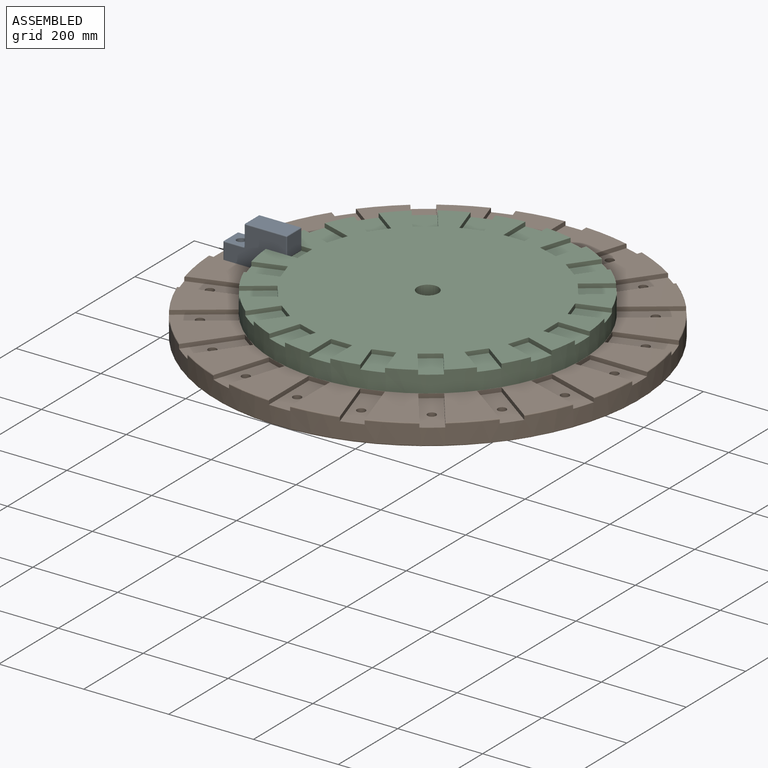
[diagram: assembled view]
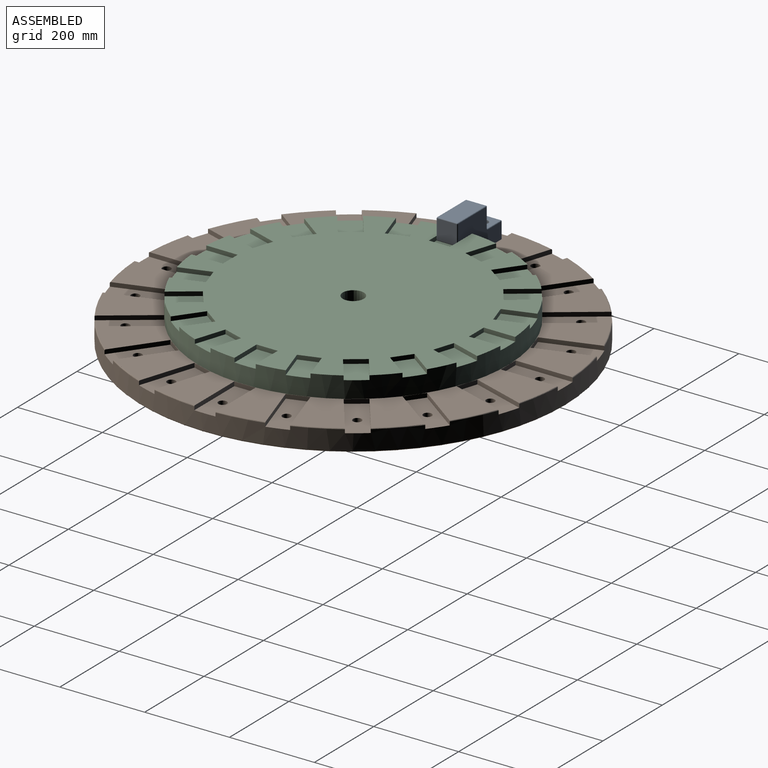
[diagram: assembled view, second angle]
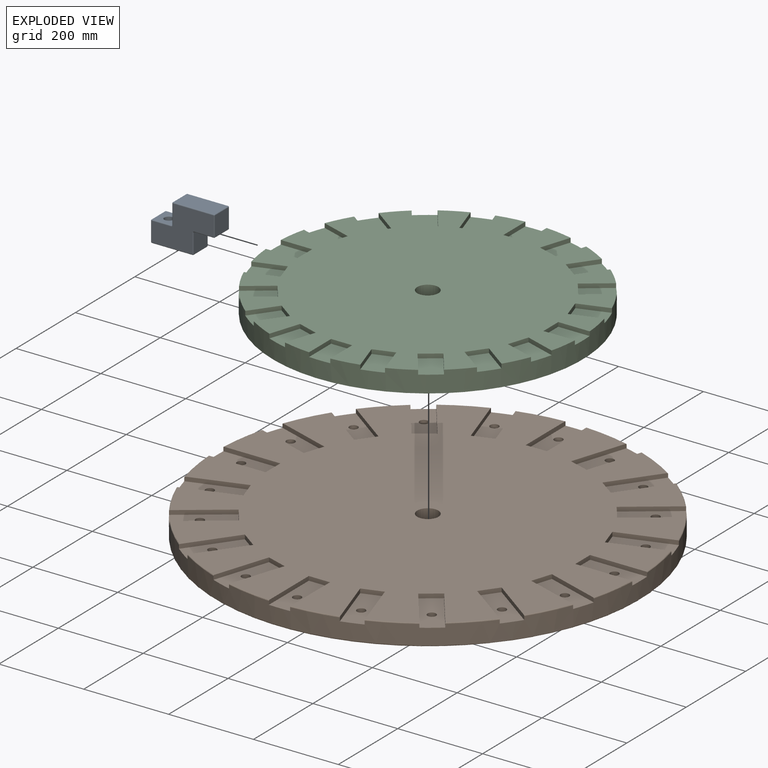
[diagram: exploded view]
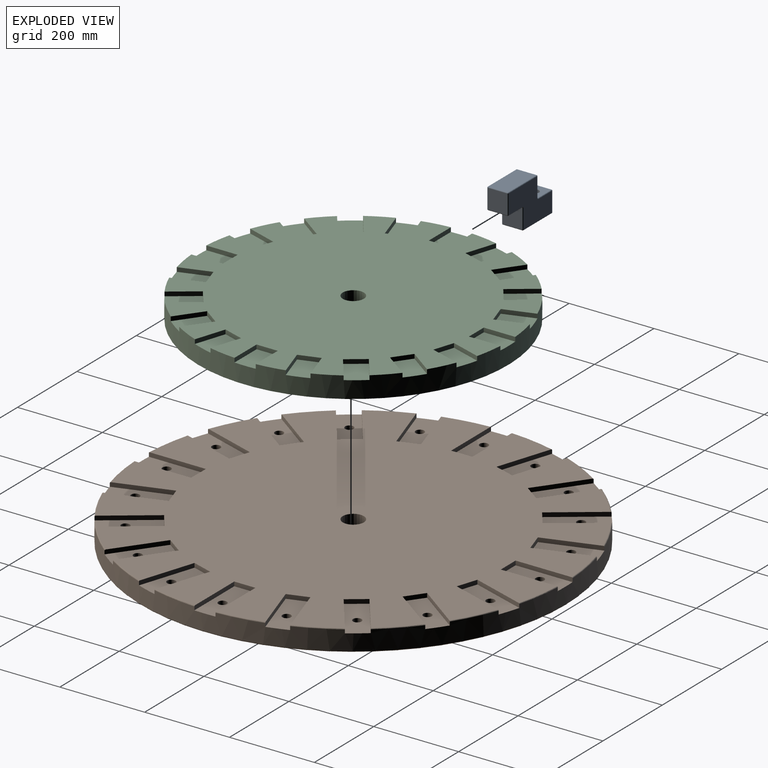
[diagram: exploded view, second angle]
ASSEMBLY  parts=3 mates=3
PART A: 52 faces, bbox 150x50x100 mm
  f0: plane 46x46mm, normal (0,0,-1), area 2116mm2, adj f40,f45,f48,f51
  f1: plane 46x46mm, normal (1,0,0), area 2116mm2, adj f37,f46,f47,f51
  f2: plane 96x46mm, normal (0,0,1), area 4416mm2, adj f27,f36,f37,f38
  f3: plane 46x46mm, normal (-1,0,0), area 2116mm2, adj f17,f26,f27,f28
  f4: plane 46x46mm, normal (0,0,1), area 1663.6mm2, adj f11,f12,f16,f17,f18
  f5: plane 46x46mm, normal (-1,0,0), area 2116mm2, adj f12,f15,f19,f20
  f6: plane 96x46mm, normal (0,0,-1), area 4101.8mm2, adj f10,f20,f25,f29,f30
  f7: plane 46x46mm, normal (1,0,0), area 2116mm2, adj f30,f35,f39,f40
  f8: plane 146x96mm, normal (0,-1,0), area 9022.9mm2, adj f15,f16,f22,f25,f26,f35,f36,f41
  f9: plane 146x96mm, normal (0,1,0), area 9022.9mm2, adj f18,f19,f23,f28,f29,f38,f39,f44
  f10: cylinder r=10mm len=48mm, axis (0,0,1), area 3015.9mm2, adj f6,f11
  f11: torus R=12mm, axis (0,0,1), area 211.7mm2, adj f4,f10
  f12: cylinder r=2mm len=46mm, axis (0,1,0), area 144.5mm2, adj f4,f5,f13,f14
  f13: sphere r=2mm, area 6.3mm2, adj f12,f15,f16
  f14: sphere r=2mm, area 6.3mm2, adj f12,f18,f19
  f15: cylinder r=2mm len=46mm, axis (0,0,1), area 144.5mm2, adj f5,f8,f13,f21
  f16: cylinder r=2mm len=46mm, axis (1,0,0), area 144.5mm2, adj f4,f8,f13,f22
  f17: cylinder r=2mm len=46mm, axis (0,-1,0), area 144.5mm2, adj f3,f4,f22,f23
  f18: cylinder r=2mm len=46mm, axis (-1,0,0), area 144.5mm2, adj f4,f9,f14,f23
  f19: cylinder r=2mm len=46mm, axis (0,0,-1), area 144.5mm2, adj f5,f9,f14,f24
  f20: cylinder r=2mm len=46mm, axis (0,1,0), area 144.5mm2, adj f5,f6,f21,f24
  f21: sphere r=2mm, area 6.3mm2, adj f15,f20,f25
  f22: torus R=4mm, axis (0,-1,0), area 13.5mm2, adj f8,f16,f17,f26
  f23: torus R=4mm, axis (0,-1,0), area 13.5mm2, adj f9,f17,f18,f28
  f24: sphere r=2mm, area 6.3mm2, adj f19,f20,f29
  f25: cylinder r=2mm len=96mm, axis (-1,0,0), area 301.6mm2, adj f6,f8,f21,f31
  f26: cylinder r=2mm len=46mm, axis (0,0,1), area 144.5mm2, adj f3,f8,f22,f32
  f27: cylinder r=2mm len=46mm, axis (0,1,0), area 144.5mm2, adj f2,f3,f32,f33
  f28: cylinder r=2mm len=46mm, axis (0,0,-1), area 144.5mm2, adj f3,f9,f23,f33
  f29: cylinder r=2mm len=96mm, axis (1,0,0), area 301.6mm2, adj f6,f9,f24,f34
  f30: cylinder r=2mm len=46mm, axis (0,1,0), area 144.5mm2, adj f6,f7,f31,f34
  f31: sphere r=2mm, area 6.3mm2, adj f25,f30,f35
  f32: sphere r=2mm, area 6.3mm2, adj f26,f27,f36
  f33: sphere r=2mm, area 6.3mm2, adj f27,f28,f38
  f34: sphere r=2mm, area 6.3mm2, adj f29,f30,f39
  f35: cylinder r=2mm len=46mm, axis (0,0,-1), area 144.5mm2, adj f7,f8,f31,f41
  f36: cylinder r=2mm len=96mm, axis (1,0,0), area 301.6mm2, adj f2,f8,f32,f42
  f37: cylinder r=2mm len=46mm, axis (0,1,0), area 144.5mm2, adj f1,f2,f42,f43
  f38: cylinder r=2mm len=96mm, axis (-1,0,0), area 301.6mm2, adj f2,f9,f33,f43
  f39: cylinder r=2mm len=46mm, axis (0,0,1), area 144.5mm2, adj f7,f9,f34,f44
  f40: cylinder r=2mm len=46mm, axis (0,-1,0), area 144.5mm2, adj f0,f7,f41,f44
  f41: torus R=4mm, axis (0,-1,0), area 13.5mm2, adj f8,f35,f40,f45
  f42: sphere r=2mm, area 6.3mm2, adj f36,f37,f46
  f43: sphere r=2mm, area 6.3mm2, adj f37,f38,f47
  f44: torus R=4mm, axis (0,-1,0), area 13.5mm2, adj f9,f39,f40,f48
  f45: cylinder r=2mm len=46mm, axis (-1,0,0), area 144.5mm2, adj f0,f8,f41,f49
  f46: cylinder r=2mm len=46mm, axis (0,0,-1), area 144.5mm2, adj f1,f8,f42,f49
  f47: cylinder r=2mm len=46mm, axis (0,0,1), area 144.5mm2, adj f1,f9,f43,f50
  f48: cylinder r=2mm len=46mm, axis (1,0,0), area 144.5mm2, adj f0,f9,f44,f50
  f49: sphere r=2mm, area 6.3mm2, adj f45,f46,f51
  f50: sphere r=2mm, area 6.3mm2, adj f47,f48,f51
  f51: cylinder r=2mm len=46mm, axis (0,1,0), area 144.5mm2, adj f0,f1,f49,f50
PART B: 125 faces, bbox 1082.4x1082.4x50 mm
  f0: cylinder r=10mm len=40mm, axis (0,0,-1), area 2513.3mm2, adj f42,f45
  f1: cylinder r=10mm len=40mm, axis (0,0,-1), area 2513.3mm2, adj f42,f73
  f2: cylinder r=10mm len=40mm, axis (0,0,-1), area 2513.3mm2, adj f42,f69
  f3: cylinder r=10mm len=40mm, axis (0,0,-1), area 2513.3mm2, adj f42,f65
  f4: cylinder r=10mm len=40mm, axis (0,0,-1), area 2513.3mm2, adj f42,f61
  f5: cylinder r=10mm len=40mm, axis (0,0,-1), area 2513.3mm2, adj f42,f77
  f6: cylinder r=10mm len=40mm, axis (0,0,-1), area 2513.3mm2, adj f42,f81
  f7: cylinder r=10mm len=40mm, axis (0,0,-1), area 2513.3mm2, adj f42,f89
  f8: cylinder r=10mm len=40mm, axis (0,0,-1), area 2513.3mm2, adj f42,f85
  f9: cylinder r=10mm len=40mm, axis (0,0,-1), area 2513.3mm2, adj f42,f121
  f10: cylinder r=10mm len=40mm, axis (0,0,-1), area 2513.3mm2, adj f42,f117
  f11: cylinder r=10mm len=40mm, axis (0,0,-1), area 2513.3mm2, adj f42,f113
  f12: cylinder r=10mm len=40mm, axis (0,0,-1), area 2513.3mm2, adj f42,f109
  f13: cylinder r=10mm len=40mm, axis (0,0,-1), area 2513.3mm2, adj f42,f105
  f14: cylinder r=10mm len=40mm, axis (0,0,-1), area 2513.3mm2, adj f42,f101
  f15: cylinder r=10mm len=40mm, axis (0,0,-1), area 2513.3mm2, adj f42,f97
  f16: cylinder r=10mm len=40mm, axis (0,0,-1), area 2513.3mm2, adj f42,f93
  f17: cylinder r=10mm len=40mm, axis (0,0,-1), area 2513.3mm2, adj f42,f53
  f18: cylinder r=10mm len=40mm, axis (0,0,-1), area 2513.3mm2, adj f42,f57
  f19: cylinder r=10mm len=40mm, axis (0,0,-1), area 2513.3mm2, adj f42,f49
  f20: cylinder r=500mm len=1000mm, axis (0,0,-1), area 136509.9mm2, adj f22,f23,f24,f25,f26,f27,f28,f29
  f21: plane 994.74x994.74mm, normal (0,0,1), area 644373.3mm2, adj f22,f23,f24,f25,f26,f27,f28,f29
  f22: torus R=498mm, axis (0,0,1), area 335.6mm2, adj f20,f21,f118,f123
  f23: torus R=498mm, axis (0,0,1), area 335.6mm2, adj f20,f21,f114,f119
  f24: torus R=498mm, axis (0,0,1), area 335.6mm2, adj f20,f21,f110,f115
  f25: torus R=498mm, axis (0,0,1), area 335.6mm2, adj f20,f21,f106,f111
  f26: torus R=498mm, axis (0,0,1), area 335.6mm2, adj f20,f21,f102,f107
  f27: torus R=498mm, axis (0,0,1), area 335.6mm2, adj f20,f21,f98,f103
  f28: torus R=498mm, axis (0,0,1), area 335.6mm2, adj f20,f21,f94,f99
  f29: torus R=498mm, axis (0,0,1), area 335.6mm2, adj f20,f21,f54,f95
  f30: torus R=498mm, axis (0,0,1), area 335.6mm2, adj f20,f21,f86,f91
  f31: torus R=498mm, axis (0,0,1), area 335.6mm2, adj f20,f21,f87,f122
  f32: torus R=498mm, axis (0,0,1), area 335.6mm2, adj f20,f21,f83,f90
  f33: torus R=498mm, axis (0,0,1), area 335.6mm2, adj f20,f21,f79,f82
  f34: torus R=498mm, axis (0,0,1), area 335.6mm2, adj f20,f21,f70,f75
  f35: torus R=498mm, axis (0,0,1), area 335.6mm2, adj f20,f21,f66,f71
  f36: torus R=498mm, axis (0,0,1), area 335.6mm2, adj f20,f21,f62,f67
  f37: torus R=498mm, axis (0,0,1), area 335.6mm2, adj f20,f21,f63,f78
  f38: torus R=498mm, axis (0,0,1), area 335.6mm2, adj f20,f21,f50,f59
  f39: torus R=498mm, axis (0,0,1), area 335.6mm2, adj f20,f21,f55,f58
  f40: torus R=498mm, axis (0,0,1), area 335.6mm2, adj f20,f21,f46,f51
  f41: cylinder r=25mm len=50mm, axis (0,0,-1), area 7854mm2, adj f21,f42
  f42: plane 996x996mm, normal (0,0,-1), area 770880.9mm2, adj f0,f1,f2,f3,f4,f5,f6,f7
  f43: torus R=498mm, axis (0,0,1), area 9855.3mm2, adj f20,f42
  f44: torus R=498mm, axis (0,0,1), area 335.6mm2, adj f20,f21,f47,f74
  f45: plane 135x50mm, normal (0,0,1), area 6425.4mm2, adj f0,f20,f46,f47,f48
  f46: plane 134.38x10mm, normal (0,-1,0), area 1342.9mm2, adj f20,f21,f40,f45,f48
  f47: plane 134.38x10mm, normal (0,1,0), area 1342.9mm2, adj f20,f21,f44,f45,f48
  f48: plane 50x10mm, normal (-1,0,0), area 500mm2, adj f21,f45,f46,f47
  f49: plane 143.25x89.08mm, normal (0,0,1), area 6425.4mm2, adj f19,f20,f50,f51,f52
  f50: plane 127.8x41.52mm, normal (-0.31,-0.95,0), area 1342.9mm2, adj f20,f21,f38,f49,f52
  f51: plane 127.8x41.52mm, normal (0.31,0.95,0), area 1342.9mm2, adj f20,f21,f40,f49,f52
  f52: plane 47.55x15.45mm, normal (-0.95,0.31,0), area 500mm2, adj f21,f49,f50,f51
  f53: plane 138.1x119.43mm, normal (0,0,1), area 6425.4mm2, adj f17,f20,f54,f55,f56
  f54: plane 108.71x78.98mm, normal (-0.81,-0.59,0), area 1342.9mm2, adj f20,f21,f29,f53,f56
  f55: plane 108.71x78.98mm, normal (0.81,0.59,0), area 1342.9mm2, adj f20,f21,f39,f53,f56
  f56: plane 40.45x29.39mm, normal (-0.59,0.81,0), area 500mm2, adj f21,f53,f54,f55
  f57: plane 138.1x119.43mm, normal (0,0,1), area 6425.4mm2, adj f18,f20,f58,f59,f60
  f58: plane 108.71x78.98mm, normal (-0.59,-0.81,0), area 1342.9mm2, adj f20,f21,f39,f57,f60
  f59: plane 108.71x78.98mm, normal (0.59,0.81,0), area 1342.9mm2, adj f20,f21,f38,f57,f60
  f60: plane 40.45x29.39mm, normal (-0.81,0.59,0), area 500mm2, adj f21,f57,f58,f59
  f61: plane 143.25x89.08mm, normal (0,0,1), area 6425.4mm2, adj f4,f20,f62,f63,f64
  f62: plane 127.8x41.52mm, normal (0.95,-0.31,0), area 1342.9mm2, adj f20,f21,f36,f61,f64
  f63: plane 127.8x41.52mm, normal (-0.95,0.31,0), area 1342.9mm2, adj f20,f21,f37,f61,f64
  f64: plane 47.55x15.45mm, normal (-0.31,-0.95,0), area 500mm2, adj f21,f61,f62,f63
  f65: plane 138.1x119.43mm, normal (0,0,1), area 6425.4mm2, adj f3,f20,f66,f67,f68
  f66: plane 108.71x78.98mm, normal (0.81,-0.59,0), area 1342.9mm2, adj f20,f21,f35,f65,f68
  f67: plane 108.71x78.98mm, normal (-0.81,0.59,0), area 1342.9mm2, adj f20,f21,f36,f65,f68
  f68: plane 40.45x29.39mm, normal (-0.59,-0.81,0), area 500mm2, adj f21,f65,f66,f67
  f69: plane 138.1x119.43mm, normal (0,0,1), area 6425.4mm2, adj f2,f20,f70,f71,f72
  f70: plane 108.71x78.98mm, normal (0.59,-0.81,0), area 1342.9mm2, adj f20,f21,f34,f69,f72
  f71: plane 108.71x78.98mm, normal (-0.59,0.81,0), area 1342.9mm2, adj f20,f21,f35,f69,f72
  f72: plane 40.45x29.39mm, normal (-0.81,-0.59,0), area 500mm2, adj f21,f69,f70,f71
  f73: plane 143.25x89.08mm, normal (0,0,1), area 6425.4mm2, adj f1,f20,f74,f75,f76
  f74: plane 127.8x41.52mm, normal (0.31,-0.95,0), area 1342.9mm2, adj f20,f21,f44,f73,f76
  f75: plane 127.8x41.52mm, normal (-0.31,0.95,0), area 1342.9mm2, adj f20,f21,f34,f73,f76
  f76: plane 47.55x15.45mm, normal (-0.95,-0.31,0), area 500mm2, adj f21,f73,f74,f75
  f77: plane 135x50mm, normal (0,0,1), area 6425.4mm2, adj f5,f20,f78,f79,f80
  f78: plane 134.38x10mm, normal (1,0,0), area 1342.9mm2, adj f20,f21,f37,f77,f80
  f79: plane 134.38x10mm, normal (-1,0,0), area 1342.9mm2, adj f20,f21,f33,f77,f80
  f80: plane 50x10mm, normal (0,-1,0), area 500mm2, adj f21,f77,f78,f79
  f81: plane 143.25x89.08mm, normal (0,0,1), area 6425.4mm2, adj f6,f20,f82,f83,f84
  f82: plane 127.8x41.52mm, normal (0.95,0.31,0), area 1342.9mm2, adj f20,f21,f33,f81,f84
  f83: plane 127.8x41.52mm, normal (-0.95,-0.31,0), area 1342.9mm2, adj f20,f21,f32,f81,f84
  f84: plane 47.55x15.45mm, normal (0.31,-0.95,0), area 500mm2, adj f21,f81,f82,f83
  f85: plane 138.1x119.43mm, normal (0,0,1), area 6425.4mm2, adj f8,f20,f86,f87,f88
  f86: plane 108.71x78.98mm, normal (0.59,0.81,0), area 1342.9mm2, adj f20,f21,f30,f85,f88
  f87: plane 108.71x78.98mm, normal (-0.59,-0.81,0), area 1342.9mm2, adj f20,f21,f31,f85,f88
  f88: plane 40.45x29.39mm, normal (0.81,-0.59,0), area 500mm2, adj f21,f85,f86,f87
  f89: plane 138.1x119.43mm, normal (0,0,1), area 6425.4mm2, adj f7,f20,f90,f91,f92
  f90: plane 108.71x78.98mm, normal (0.81,0.59,0), area 1342.9mm2, adj f20,f21,f32,f89,f92
  f91: plane 108.71x78.98mm, normal (-0.81,-0.59,0), area 1342.9mm2, adj f20,f21,f30,f89,f92
  f92: plane 40.45x29.39mm, normal (0.59,-0.81,0), area 500mm2, adj f21,f89,f90,f91
  f93: plane 143.25x89.08mm, normal (0,0,1), area 6425.4mm2, adj f16,f20,f94,f95,f96
  f94: plane 127.8x41.52mm, normal (-0.95,-0.31,0), area 1342.9mm2, adj f20,f21,f28,f93,f96
  f95: plane 127.8x41.52mm, normal (0.95,0.31,0), area 1342.9mm2, adj f20,f21,f29,f93,f96
  f96: plane 47.55x15.45mm, normal (-0.31,0.95,0), area 500mm2, adj f21,f93,f94,f95
  f97: plane 135x50mm, normal (0,0,1), area 6425.4mm2, adj f15,f20,f98,f99,f100
  f98: plane 134.37x10mm, normal (-1,0,0), area 1342.9mm2, adj f20,f21,f27,f97,f100
  f99: plane 134.37x10mm, normal (1,0,0), area 1342.9mm2, adj f20,f21,f28,f97,f100
  f100: plane 50x10mm, normal (0,1,0), area 500mm2, adj f21,f97,f98,f99
  f101: plane 143.25x89.08mm, normal (0,0,1), area 6425.4mm2, adj f14,f20,f102,f103,f104
  f102: plane 127.8x41.52mm, normal (-0.95,0.31,0), area 1342.9mm2, adj f20,f21,f26,f101,f104
  f103: plane 127.8x41.52mm, normal (0.95,-0.31,0), area 1342.9mm2, adj f20,f21,f27,f101,f104
  f104: plane 47.55x15.45mm, normal (0.31,0.95,0), area 500mm2, adj f21,f101,f102,f103
  f105: plane 138.1x119.43mm, normal (0,0,1), area 6425.4mm2, adj f13,f20,f106,f107,f108
  f106: plane 108.71x78.98mm, normal (-0.81,0.59,0), area 1342.9mm2, adj f20,f21,f25,f105,f108
  f107: plane 108.71x78.98mm, normal (0.81,-0.59,0), area 1342.9mm2, adj f20,f21,f26,f105,f108
  f108: plane 40.45x29.39mm, normal (0.59,0.81,0), area 500mm2, adj f21,f105,f106,f107
  f109: plane 138.1x119.43mm, normal (0,0,1), area 6425.4mm2, adj f12,f20,f110,f111,f112
  f110: plane 108.71x78.98mm, normal (-0.59,0.81,0), area 1342.9mm2, adj f20,f21,f24,f109,f112
  f111: plane 108.71x78.98mm, normal (0.59,-0.81,0), area 1342.9mm2, adj f20,f21,f25,f109,f112
  f112: plane 40.45x29.39mm, normal (0.81,0.59,0), area 500mm2, adj f21,f109,f110,f111
  f113: plane 143.25x89.08mm, normal (0,0,1), area 6425.4mm2, adj f11,f20,f114,f115,f116
  f114: plane 127.8x41.52mm, normal (-0.31,0.95,0), area 1342.9mm2, adj f20,f21,f23,f113,f116
  f115: plane 127.8x41.52mm, normal (0.31,-0.95,0), area 1342.9mm2, adj f20,f21,f24,f113,f116
  f116: plane 47.55x15.45mm, normal (0.95,0.31,0), area 500mm2, adj f21,f113,f114,f115
  f117: plane 135x50mm, normal (0,0,1), area 6425.4mm2, adj f10,f20,f118,f119,f120
  f118: plane 134.37x10mm, normal (0,1,0), area 1342.9mm2, adj f20,f21,f22,f117,f120
  f119: plane 134.37x10mm, normal (0,-1,0), area 1342.9mm2, adj f20,f21,f23,f117,f120
  f120: plane 50x10mm, normal (1,0,0), area 500mm2, adj f21,f117,f118,f119
  f121: plane 143.25x89.08mm, normal (0,0,1), area 6425.4mm2, adj f9,f20,f122,f123,f124
  f122: plane 127.8x41.52mm, normal (0.31,0.95,0), area 1342.9mm2, adj f20,f21,f31,f121,f124
  f123: plane 127.8x41.52mm, normal (-0.31,-0.95,0), area 1342.9mm2, adj f20,f21,f22,f121,f124
  f124: plane 47.55x15.45mm, normal (0.95,-0.31,0), area 500mm2, adj f21,f121,f122,f123
PART C: 84 faces, bbox 730x730x50 mm
  f0: plane 728.29x728.29mm, normal (0,0,-1), area 341860.8mm2, adj f1,f2,f4,f5,f6,f8,f9,f10
  f1: cylinder r=25mm len=50mm, axis (0,0,-1), area 7854mm2, adj f0,f3
  f2: cylinder r=365mm len=730mm, axis (0,0,-1), area 104660.3mm2, adj f0,f3,f4,f5,f7,f8,f10,f11
  f3: plane 730x730mm, normal (0,0,1), area 416575.2mm2, adj f1,f2
  f4: plane 74.14x10mm, normal (0,1,0), area 741.4mm2, adj f0,f2,f6,f7
  f5: plane 74.14x10mm, normal (0,-1,0), area 741.4mm2, adj f0,f2,f6,f7
  f6: plane 50x10mm, normal (-1,0,0), area 500mm2, adj f0,f4,f5,f7
  f7: plane 75x50mm, normal (0,0,-1), area 3735.7mm2, adj f2,f4,f5,f6
  f8: plane 70.51x22.91mm, normal (-0.31,-0.95,0), area 741.4mm2, adj f0,f2,f9,f11
  f9: plane 47.55x15.45mm, normal (-0.95,0.31,0), area 500mm2, adj f0,f8,f10,f11
  f10: plane 70.51x22.91mm, normal (0.31,0.95,0), area 741.4mm2, adj f0,f2,f9,f11
  f11: plane 85.97x70.46mm, normal (0,0,-1), area 3735.7mm2, adj f2,f8,f9,f10
  f12: plane 59.98x43.58mm, normal (-0.81,-0.59,0), area 741.4mm2, adj f0,f2,f13,f15
  f13: plane 40.45x29.39mm, normal (-0.59,0.81,0), area 500mm2, adj f0,f12,f14,f15
  f14: plane 59.98x43.58mm, normal (0.81,0.59,0), area 741.4mm2, adj f0,f2,f13,f15
  f15: plane 89.37x84.03mm, normal (0,0,-1), area 3735.7mm2, adj f2,f12,f13,f14
  f16: plane 59.98x43.58mm, normal (-0.59,-0.81,0), area 741.4mm2, adj f0,f2,f17,f19
  f17: plane 40.45x29.39mm, normal (-0.81,0.59,0), area 500mm2, adj f0,f16,f18,f19
  f18: plane 59.98x43.58mm, normal (0.59,0.81,0), area 741.4mm2, adj f0,f2,f17,f19
  f19: plane 89.37x84.03mm, normal (0,0,-1), area 3735.7mm2, adj f2,f16,f17,f18
  f20: plane 70.51x22.91mm, normal (0.95,-0.31,0), area 741.4mm2, adj f0,f2,f21,f23
  f21: plane 47.55x15.45mm, normal (-0.31,-0.95,0), area 500mm2, adj f0,f20,f22,f23
  f22: plane 70.51x22.91mm, normal (-0.95,0.31,0), area 741.4mm2, adj f0,f2,f21,f23
  f23: plane 85.97x70.46mm, normal (0,0,-1), area 3735.7mm2, adj f2,f20,f21,f22
  f24: plane 59.98x43.58mm, normal (0.81,-0.59,0), area 741.4mm2, adj f0,f2,f25,f27
  f25: plane 40.45x29.39mm, normal (-0.59,-0.81,0), area 500mm2, adj f0,f24,f26,f27
  f26: plane 59.98x43.58mm, normal (-0.81,0.59,0), area 741.4mm2, adj f0,f2,f25,f27
  f27: plane 89.37x84.03mm, normal (0,0,-1), area 3735.7mm2, adj f2,f24,f25,f26
  f28: plane 59.98x43.58mm, normal (0.59,-0.81,0), area 741.4mm2, adj f0,f2,f29,f31
  f29: plane 40.45x29.39mm, normal (-0.81,-0.59,0), area 500mm2, adj f0,f28,f30,f31
  f30: plane 59.98x43.58mm, normal (-0.59,0.81,0), area 741.4mm2, adj f0,f2,f29,f31
  f31: plane 89.37x84.03mm, normal (0,0,-1), area 3735.7mm2, adj f2,f28,f29,f30
  f32: plane 70.51x22.91mm, normal (0.31,-0.95,0), area 741.4mm2, adj f0,f2,f33,f35
  f33: plane 47.55x15.45mm, normal (-0.95,-0.31,0), area 500mm2, adj f0,f32,f34,f35
  f34: plane 70.51x22.91mm, normal (-0.31,0.95,0), area 741.4mm2, adj f0,f2,f33,f35
  f35: plane 85.97x70.46mm, normal (0,0,-1), area 3735.7mm2, adj f2,f32,f33,f34
  f36: plane 74.14x10mm, normal (1,0,0), area 741.4mm2, adj f0,f2,f37,f39
  f37: plane 50x10mm, normal (0,-1,0), area 500mm2, adj f0,f36,f38,f39
  f38: plane 74.14x10mm, normal (-1,0,0), area 741.4mm2, adj f0,f2,f37,f39
  f39: plane 75x50mm, normal (0,0,-1), area 3735.7mm2, adj f2,f36,f37,f38
  f40: plane 70.51x22.91mm, normal (0.95,0.31,0), area 741.4mm2, adj f0,f2,f41,f43
  f41: plane 47.55x15.45mm, normal (0.31,-0.95,0), area 500mm2, adj f0,f40,f42,f43
  f42: plane 70.51x22.91mm, normal (-0.95,-0.31,0), area 741.4mm2, adj f0,f2,f41,f43
  f43: plane 85.97x70.46mm, normal (0,0,-1), area 3735.7mm2, adj f2,f40,f41,f42
  f44: plane 59.98x43.58mm, normal (0.59,0.81,0), area 741.4mm2, adj f0,f2,f45,f47
  f45: plane 40.45x29.39mm, normal (0.81,-0.59,0), area 500mm2, adj f0,f44,f46,f47
  f46: plane 59.98x43.58mm, normal (-0.59,-0.81,0), area 741.4mm2, adj f0,f2,f45,f47
  f47: plane 89.37x84.03mm, normal (0,0,-1), area 3735.7mm2, adj f2,f44,f45,f46
  f48: plane 59.98x43.58mm, normal (0.81,0.59,0), area 741.4mm2, adj f0,f2,f49,f51
  f49: plane 40.45x29.39mm, normal (0.59,-0.81,0), area 500mm2, adj f0,f48,f50,f51
  f50: plane 59.98x43.58mm, normal (-0.81,-0.59,0), area 741.4mm2, adj f0,f2,f49,f51
  f51: plane 89.37x84.03mm, normal (0,0,-1), area 3735.7mm2, adj f2,f48,f49,f50
  f52: plane 70.51x22.91mm, normal (-0.95,-0.31,0), area 741.4mm2, adj f0,f2,f53,f55
  f53: plane 47.55x15.45mm, normal (-0.31,0.95,0), area 500mm2, adj f0,f52,f54,f55
  f54: plane 70.51x22.91mm, normal (0.95,0.31,0), area 741.4mm2, adj f0,f2,f53,f55
  f55: plane 85.97x70.46mm, normal (0,0,-1), area 3735.7mm2, adj f2,f52,f53,f54
  f56: plane 74.14x10mm, normal (-1,0,0), area 741.4mm2, adj f0,f2,f57,f59
  f57: plane 50x10mm, normal (0,1,0), area 500mm2, adj f0,f56,f58,f59
  f58: plane 74.14x10mm, normal (1,0,0), area 741.4mm2, adj f0,f2,f57,f59
  f59: plane 75x50mm, normal (0,0,-1), area 3735.7mm2, adj f2,f56,f57,f58
  f60: plane 70.51x22.91mm, normal (-0.95,0.31,0), area 741.4mm2, adj f0,f2,f61,f63
  f61: plane 47.55x15.45mm, normal (0.31,0.95,0), area 500mm2, adj f0,f60,f62,f63
  f62: plane 70.51x22.91mm, normal (0.95,-0.31,0), area 741.4mm2, adj f0,f2,f61,f63
  f63: plane 85.97x70.46mm, normal (0,0,-1), area 3735.7mm2, adj f2,f60,f61,f62
  f64: plane 59.98x43.58mm, normal (-0.81,0.59,0), area 741.4mm2, adj f0,f2,f65,f67
  f65: plane 40.45x29.39mm, normal (0.59,0.81,0), area 500mm2, adj f0,f64,f66,f67
  f66: plane 59.98x43.58mm, normal (0.81,-0.59,0), area 741.4mm2, adj f0,f2,f65,f67
  f67: plane 89.37x84.03mm, normal (0,0,-1), area 3735.7mm2, adj f2,f64,f65,f66
  f68: plane 59.98x43.58mm, normal (-0.59,0.81,0), area 741.4mm2, adj f0,f2,f69,f71
  f69: plane 40.45x29.39mm, normal (0.81,0.59,0), area 500mm2, adj f0,f68,f70,f71
  f70: plane 59.98x43.58mm, normal (0.59,-0.81,0), area 741.4mm2, adj f0,f2,f69,f71
  f71: plane 89.37x84.03mm, normal (0,0,-1), area 3735.7mm2, adj f2,f68,f69,f70
  f72: plane 70.51x22.91mm, normal (-0.31,0.95,0), area 741.4mm2, adj f0,f2,f73,f75
  f73: plane 47.55x15.45mm, normal (0.95,0.31,0), area 500mm2, adj f0,f72,f74,f75
  f74: plane 70.51x22.91mm, normal (0.31,-0.95,0), area 741.4mm2, adj f0,f2,f73,f75
  f75: plane 85.97x70.46mm, normal (0,0,-1), area 3735.7mm2, adj f2,f72,f73,f74
  f76: plane 74.14x10mm, normal (0,1,0), area 741.4mm2, adj f0,f2,f77,f79
  f77: plane 50x10mm, normal (1,0,0), area 500mm2, adj f0,f76,f78,f79
  f78: plane 74.14x10mm, normal (0,-1,0), area 741.4mm2, adj f0,f2,f77,f79
  f79: plane 75x50mm, normal (0,0,-1), area 3735.7mm2, adj f2,f76,f77,f78
  f80: plane 70.51x22.91mm, normal (0.31,0.95,0), area 741.4mm2, adj f0,f2,f81,f83
  f81: plane 47.55x15.45mm, normal (0.95,-0.31,0), area 500mm2, adj f0,f80,f82,f83
  f82: plane 70.51x22.91mm, normal (-0.31,-0.95,0), area 741.4mm2, adj f0,f2,f81,f83
  f83: plane 85.97x70.46mm, normal (0,0,-1), area 3735.7mm2, adj f2,f80,f81,f82
PLACE A t=(-508.78,-262.72,821.34)mm
PLACE B rot(axis=(0,0,-1),36deg) t=(-227.77,-287.72,616.84)mm
PLACE C rot(axis=(-0.31,-0.95,0),180deg) t=(-227.77,-287.72,716.84)mm
MATE parallel A.f7 <-> B.f72  axis (1,0,0) through (-592.77,-287.72,681.84)mm
MATE revolute A.f10 <-> B.f2  axis (0,0,-1) through (-667.77,-287.72,656.84)mm
MATE revolute C.f1 <-> B.f41  axis (0,0,-1) through (-227.77,-287.72,666.84)mm
